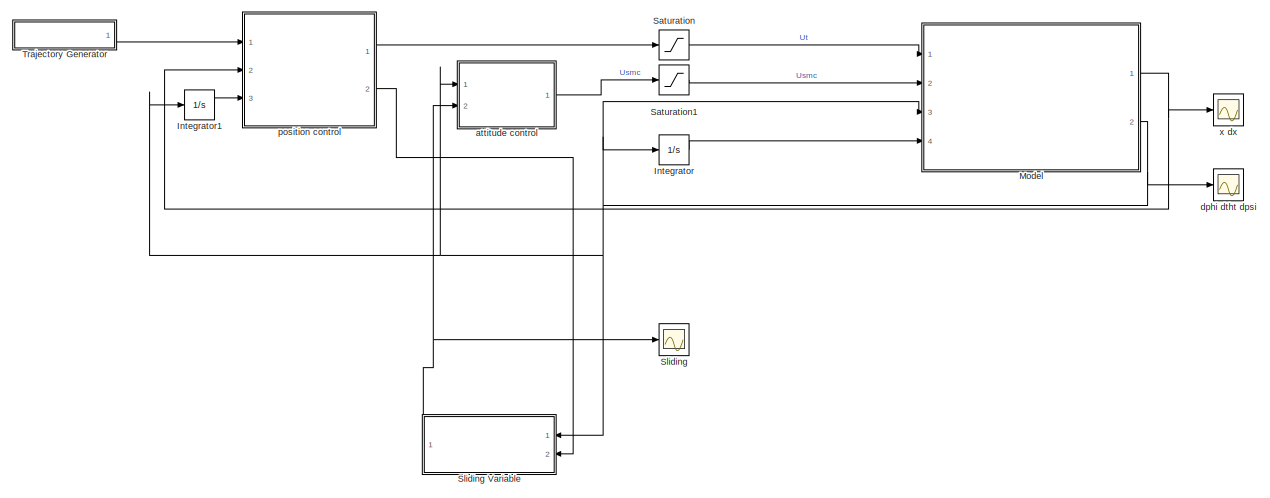
[diagram: root canvas - part 1/2, middle left region]
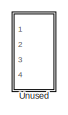
[diagram: root canvas - part 2/2, bottom right region]
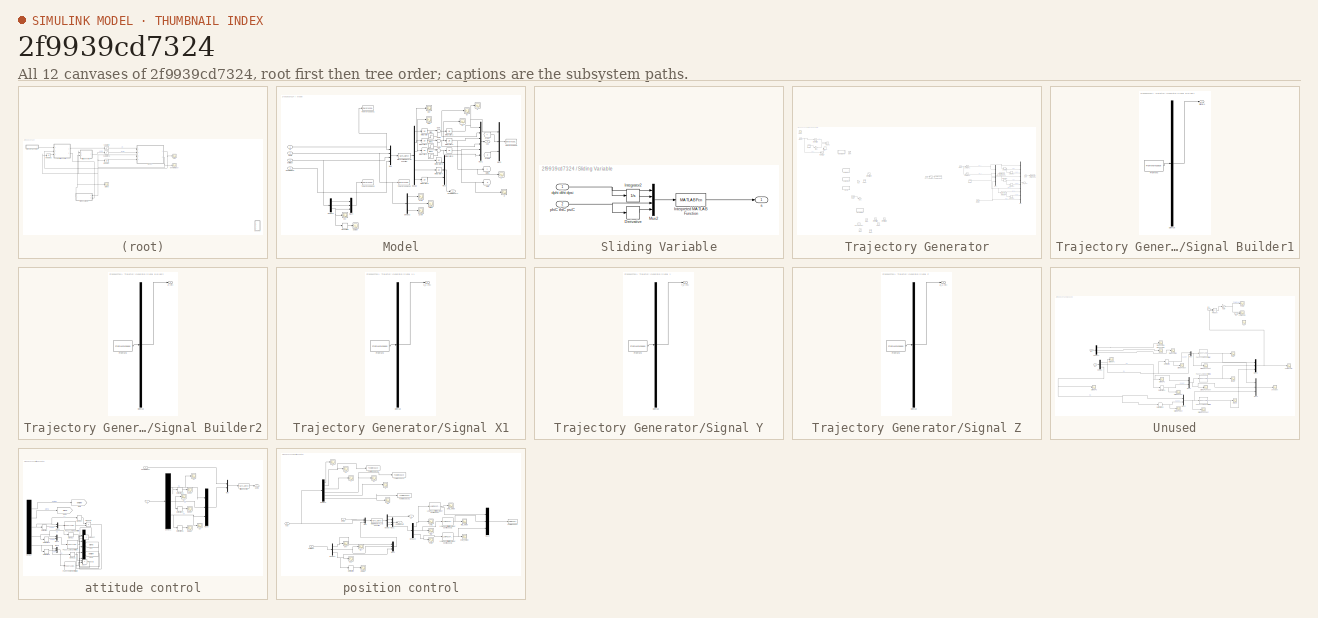
[diagram: thumbnail index - all 12 canvases of the model, root first then tree order]
MODEL slx_2f9939cd7324
KIND model
CONFIG AbsTol = auto
CONFIG EnableMultiTasking = on
CONFIG FixedStep = 0.01
CONFIG MaxStep = auto
CONFIG MinStep = auto
CONFIG RelTol = 1e-3
CONFIG SampleTimeConstraint = Unconstrained
CONFIG SolverName = ode3
CONFIG StartTime = 0.0
CONFIG StopTime = 100
BLOCK [Integrator] Integrator
  Ports = [1, 1]
BLOCK [Integrator] Integrator1
  Ports = [1, 1]
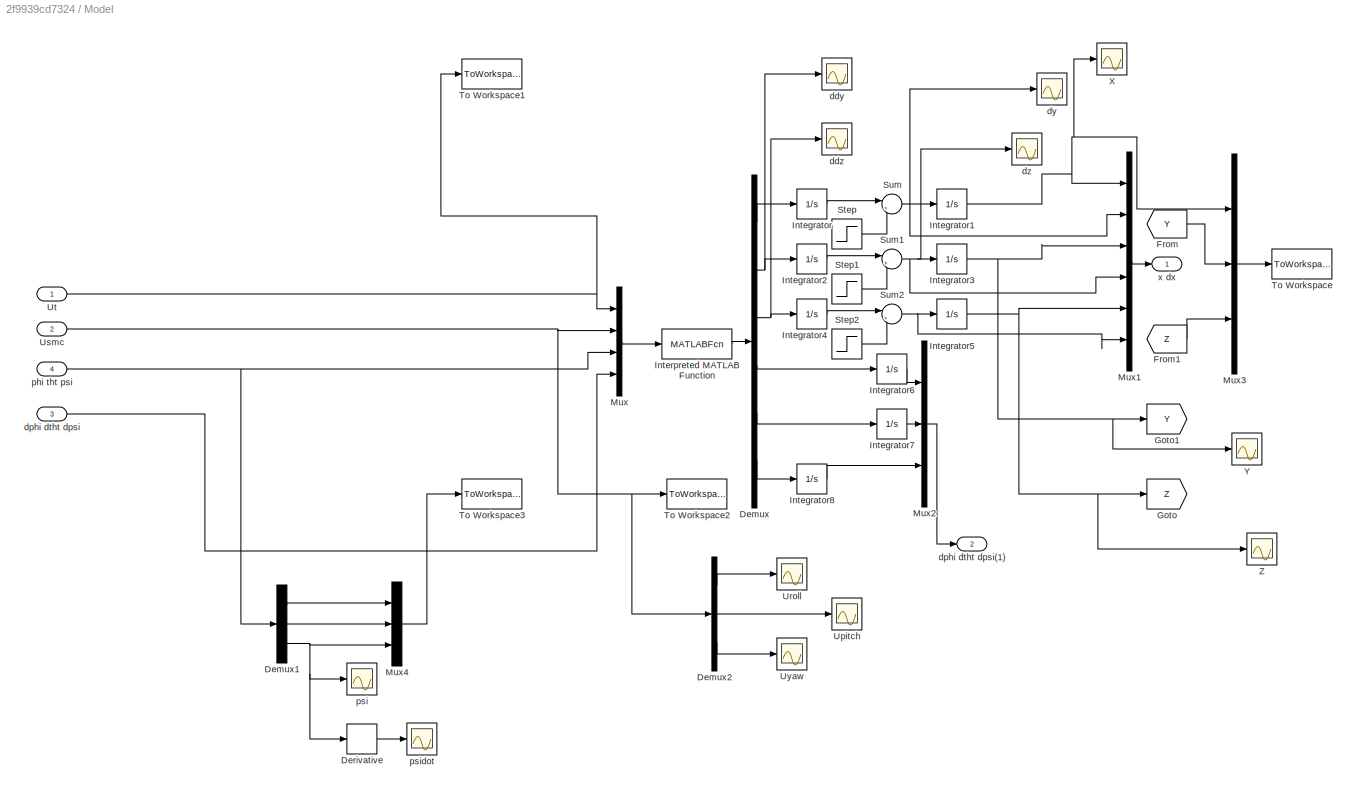
BLOCK [SubSystem] Model
  Ports = [4, 2]
  RequestExecContextInheritance = off
BLOCK [Demux] Model/Demux
  Outputs = 6
  Ports = [1, 6]
BLOCK [Demux] Model/Demux1
  Outputs = 3
  Ports = [1, 3]
BLOCK [Demux] Model/Demux2
  Outputs = 3
  Ports = [1, 3]
BLOCK [Derivative] Model/Derivative
BLOCK [From] Model/From
  GotoTag = Y
BLOCK [From] Model/From1
  GotoTag = Z
BLOCK [Goto] Model/Goto
  GotoTag = Z
BLOCK [Goto] Model/Goto1
  GotoTag = Y
BLOCK [Integrator] Model/Integrator
  Ports = [1, 1]
BLOCK [Integrator] Model/Integrator1
  Ports = [1, 1]
BLOCK [Integrator] Model/Integrator2
  Ports = [1, 1]
BLOCK [Integrator] Model/Integrator3
  InitialCondition = 8
  Ports = [1, 1]
BLOCK [Integrator] Model/Integrator4
  Ports = [1, 1]
BLOCK [Integrator] Model/Integrator5
  Ports = [1, 1]
BLOCK [Integrator] Model/Integrator6
  Ports = [1, 1]
BLOCK [Integrator] Model/Integrator7
  Ports = [1, 1]
BLOCK [Integrator] Model/Integrator8
  Ports = [1, 1]
BLOCK [MATLABFcn] Model/Interpreted MATLAB Function
  MATLABFcn = model(u)
  OutputDimensions = 6
  Ports = [1, 1]
BLOCK [Mux] Model/Mux
  DisplayOption = bar
  Ports = [4, 1]
BLOCK [Mux] Model/Mux1
  DisplayOption = bar
  Inputs = 6
  Ports = [6, 1]
BLOCK [Mux] Model/Mux2
  DisplayOption = bar
  Inputs = 3
  Ports = [3, 1]
BLOCK [Mux] Model/Mux3
  DisplayOption = bar
  Inputs = 3
  Ports = [3, 1]
BLOCK [Mux] Model/Mux4
  DisplayOption = bar
  Inputs = 3
  Ports = [3, 1]
BLOCK [Step] Model/Step
  After = 5
  SampleTime = 0
  Time = 25
BLOCK [Step] Model/Step1
  After = 5
  SampleTime = 0
  Time = 25
BLOCK [Step] Model/Step2
  After = 5
  SampleTime = 0
  Time = 25
BLOCK [Sum] Model/Sum
  Inputs = |++
  Ports = [2, 1]
BLOCK [Sum] Model/Sum1
  Inputs = |++
  Ports = [2, 1]
BLOCK [Sum] Model/Sum2
  Inputs = |++
  Ports = [2, 1]
BLOCK [ToWorkspace] Model/To Workspace
  FixptAsFi = on
  MaxDataPoints = inf
  Ports = [1]
  SampleTime = -1
  VariableName = xyz
BLOCK [ToWorkspace] Model/To Workspace1
  FixptAsFi = on
  MaxDataPoints = inf
  Ports = [1]
  SampleTime = -1
  VariableName = u1
BLOCK [ToWorkspace] Model/To Workspace2
  FixptAsFi = on
  MaxDataPoints = inf
  Ports = [1]
  SampleTime = -1
  VariableName = u2
BLOCK [ToWorkspace] Model/To Workspace3
  FixptAsFi = on
  MaxDataPoints = inf
  Ports = [1]
  SampleTime = -1
  VariableName = phi_tht_psi
BLOCK [Scope] Model/Upitch
  Floating = off
  NumInputPorts = 1
  Ports = [1]
  ScopeSpecificationString = Simulink.scopes.TimeScopeBlockCfg('CurrentConfiguration', extmgr.ConfigurationSet(extmgr.Configuration('Core','General UI',true),extmgr.Configuration('Core','Source UI',true),extmgr.Configuration('Sources','WiredSimulink',true,'DataLoggingVariableName','ScopeData2'),extmgr.Configuration('Visuals','Time Domain',true,'SerializedDisplays',{struct('MinYLimReal','-0.02536','MaxYLimReal','0.02729','YLab...<+1407ch>
BLOCK [Scope] Model/Uroll
  Floating = off
  NumInputPorts = 1
  Ports = [1]
  ScopeSpecificationString = Simulink.scopes.TimeScopeBlockCfg('CurrentConfiguration', extmgr.ConfigurationSet(extmgr.Configuration('Core','General UI',true),extmgr.Configuration('Core','Source UI',true),extmgr.Configuration('Sources','WiredSimulink',true,'DataLoggingVariableName','ScopeData1'),extmgr.Configuration('Visuals','Time Domain',true,'SerializedDisplays',{struct('MinYLimReal','-0.02821','MaxYLimReal','0.02435','YLab...<+1407ch>
BLOCK [Inport] Model/Usmc
  Port = 2
BLOCK [Inport] Model/Ut
BLOCK [Scope] Model/Uyaw
  Floating = off
  NumInputPorts = 1
  Ports = [1]
  ScopeSpecificationString = Simulink.scopes.TimeScopeBlockCfg('CurrentConfiguration', extmgr.ConfigurationSet(extmgr.Configuration('Core','General UI',true),extmgr.Configuration('Core','Source UI',true),extmgr.Configuration('Sources','WiredSimulink',true,'DataLoggingVariableName','ScopeData3'),extmgr.Configuration('Visuals','Time Domain',true,'SerializedDisplays',{struct('MinYLimReal','-0.04535','MaxYLimReal','0.05338','YLab...<+1407ch>
BLOCK [Scope] Model/X
  Floating = off
  NumInputPorts = 1
  Ports = [1]
  ScopeSpecificationString = Simulink.scopes.TimeScopeBlockCfg('CurrentConfiguration', extmgr.ConfigurationSet(extmgr.Configuration('Core','General UI',true),extmgr.Configuration('Core','Source UI',true),extmgr.Configuration('Sources','WiredSimulink',true,'DataLoggingVariableName','ScopeData1'),extmgr.Configuration('Visuals','Time Domain',true,'SerializedDisplays',{struct('MinYLimReal','-0.99936','MaxYLimReal','8.99421','YLab...<+1370ch>
BLOCK [Scope] Model/Y
  Floating = off
  NumInputPorts = 1
  Ports = [1]
  ScopeSpecificationString = Simulink.scopes.TimeScopeBlockCfg('CurrentConfiguration', extmgr.ConfigurationSet(extmgr.Configuration('Core','General UI',true),extmgr.Configuration('Core','Source UI',true),extmgr.Configuration('Sources','WiredSimulink',true,'DataLoggingVariableName','ScopeData2'),extmgr.Configuration('Visuals','Time Domain',true,'SerializedDisplays',{struct('MinYLimReal','-9.19845','MaxYLimReal','9.91094','YLab...<+1370ch>
BLOCK [Scope] Model/Z
  Floating = off
  NumInputPorts = 1
  Ports = [1]
  ScopeSpecificationString = Simulink.scopes.TimeScopeBlockCfg('CurrentConfiguration', extmgr.ConfigurationSet(extmgr.Configuration('Core','General UI',true),extmgr.Configuration('Core','Source UI',true),extmgr.Configuration('Sources','WiredSimulink',true,'DataLoggingVariableName','ScopeData3'),extmgr.Configuration('Visuals','Time Domain',true),extmgr.Configuration('Tools','Plot Navigation',true),extmgr.Configuration('Tools',...<+40ch>
BLOCK [Scope] Model/ddy
  Floating = off
  NumInputPorts = 1
  Ports = [1]
  ScopeSpecificationString = Simulink.scopes.TimeScopeBlockCfg('CurrentConfiguration', extmgr.ConfigurationSet(extmgr.Configuration('Core','General UI',true),extmgr.Configuration('Core','Source UI',true),extmgr.Configuration('Sources','WiredSimulink',true,'DataLoggingVariableName','ScopeData4'),extmgr.Configuration('Visuals','Time Domain',true,'SerializedDisplays',{struct('MinYLimReal','-13.37923','MaxYLimReal','8.30279','YLa...<+1370ch>
BLOCK [Scope] Model/ddz
  Floating = off
  NumInputPorts = 1
  Ports = [1]
  ScopeSpecificationString = Simulink.scopes.TimeScopeBlockCfg('CurrentConfiguration', extmgr.ConfigurationSet(extmgr.Configuration('Core','General UI',true),extmgr.Configuration('Core','Source UI',true),extmgr.Configuration('Sources','WiredSimulink',true,'DataLoggingVariableName','ScopeData5'),extmgr.Configuration('Visuals','Time Domain',true,'SerializedDisplays',{struct('MinYLimReal','-10.07515','MaxYLimReal','10.73277','YL...<+1372ch>
BLOCK [Inport] Model/dphi dtht dpsi
  Port = 3
BLOCK [Outport] Model/dphi dtht dpsi(1)
  Port = 2
BLOCK [Scope] Model/dy
  Floating = off
  NumInputPorts = 1
  Ports = [1]
  ScopeSpecificationString = Simulink.scopes.TimeScopeBlockCfg('CurrentConfiguration', extmgr.ConfigurationSet(extmgr.Configuration('Core','General UI',true),extmgr.Configuration('Core','Source UI',true),extmgr.Configuration('Sources','WiredSimulink',true,'DataLoggingVariableName','ScopeData6'),extmgr.Configuration('Visuals','Time Domain',true,'SerializedDisplays',{struct('MinYLimReal','-13.44228','MaxYLimReal','8.87017','YLa...<+1370ch>
BLOCK [Scope] Model/dz
  Floating = off
  NumInputPorts = 1
  Ports = [1]
  ScopeSpecificationString = Simulink.scopes.TimeScopeBlockCfg('CurrentConfiguration', extmgr.ConfigurationSet(extmgr.Configuration('Core','General UI',true),extmgr.Configuration('Core','Source UI',true),extmgr.Configuration('Sources','WiredSimulink',true,'DataLoggingVariableName','ScopeData7'),extmgr.Configuration('Visuals','Time Domain',true,'SerializedDisplays',{struct('MinYLimReal','-2.14368','MaxYLimReal','5.28824','YLab...<+1418ch>
BLOCK [Inport] Model/phi tht psi
  Port = 4
BLOCK [Scope] Model/psi
  Floating = off
  NumInputPorts = 1
  Ports = [1]
  ScopeSpecificationString = Simulink.scopes.TimeScopeBlockCfg('CurrentConfiguration', extmgr.ConfigurationSet(extmgr.Configuration('Core','General UI',true),extmgr.Configuration('Core','Source UI',true),extmgr.Configuration('Sources','WiredSimulink',true,'DataLoggingVariableName','ScopeData7'),extmgr.Configuration('Visuals','Time Domain',true,'SerializedDisplays',{struct('MinYLimReal','-0.00177','MaxYLimReal','0.00158','YLab...<+1426ch>
BLOCK [Scope] Model/psidot
  Floating = off
  NumInputPorts = 1
  Ports = [1]
  ScopeSpecificationString = Simulink.scopes.TimeScopeBlockCfg('CurrentConfiguration', extmgr.ConfigurationSet(extmgr.Configuration('Core','General UI',true),extmgr.Configuration('Core','Source UI',true),extmgr.Configuration('Sources','WiredSimulink',true,'DataLoggingVariableName','ScopeData8'),extmgr.Configuration('Visuals','Time Domain',true,'SerializedDisplays',{struct('MinYLimReal','-0.59838','MaxYLimReal','0.47389','YLab...<+1409ch>
BLOCK [Outport] Model/x dx
BLOCK [Saturate] Saturation
  LowerLimit = 0
  NameLocation = top
  UpperLimit = 2*m*g
BLOCK [Saturate] Saturation1
  LowerLimit = -0.2
  UpperLimit = 0.2
BLOCK [Scope] Sliding
  Floating = off
  NumInputPorts = 1
  Ports = [1]
  ScopeSpecificationString = Simulink.scopes.TimeScopeBlockCfg('CurrentConfiguration', extmgr.ConfigurationSet(extmgr.Configuration('Core','General UI',true),extmgr.Configuration('Core','Source UI',true),extmgr.Configuration('Sources','WiredSimulink',true,'DataLoggingVariableName','ScopeData2'),extmgr.Configuration('Visuals','Time Domain',true,'SerializedDisplays',{struct('MinYLimReal','-1740.33859','MaxYLimReal','193.37095',...<+1445ch>
BLOCK [SubSystem] Sliding Variable
  Ports = [2, 1]
  RequestExecContextInheritance = off
BLOCK [Derivative] Sliding Variable/Derivative
BLOCK [Integrator] Sliding Variable/Integrator2
  NameLocation = top
  Ports = [1, 1]
BLOCK [MATLABFcn] Sliding Variable/Interpreted MATLAB Function
  MATLABFcn = sliding_var(u)
  OutputDimensions = 3
  Ports = [1, 1]
BLOCK [Mux] Sliding Variable/Mux2
  DisplayOption = bar
  Ports = [4, 1]
BLOCK [Inport] Sliding Variable/dphi dtht dpsi
BLOCK [Inport] Sliding Variable/phiC thtC psiC
  Port = 2
BLOCK [Outport] Sliding Variable/s
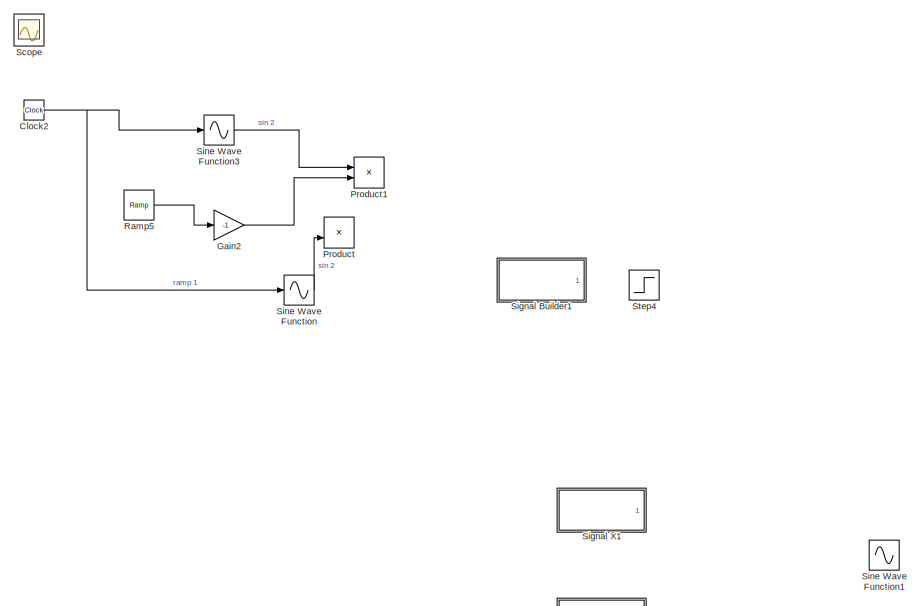
[diagram: Trajectory Generator - part 1/3, top left region]
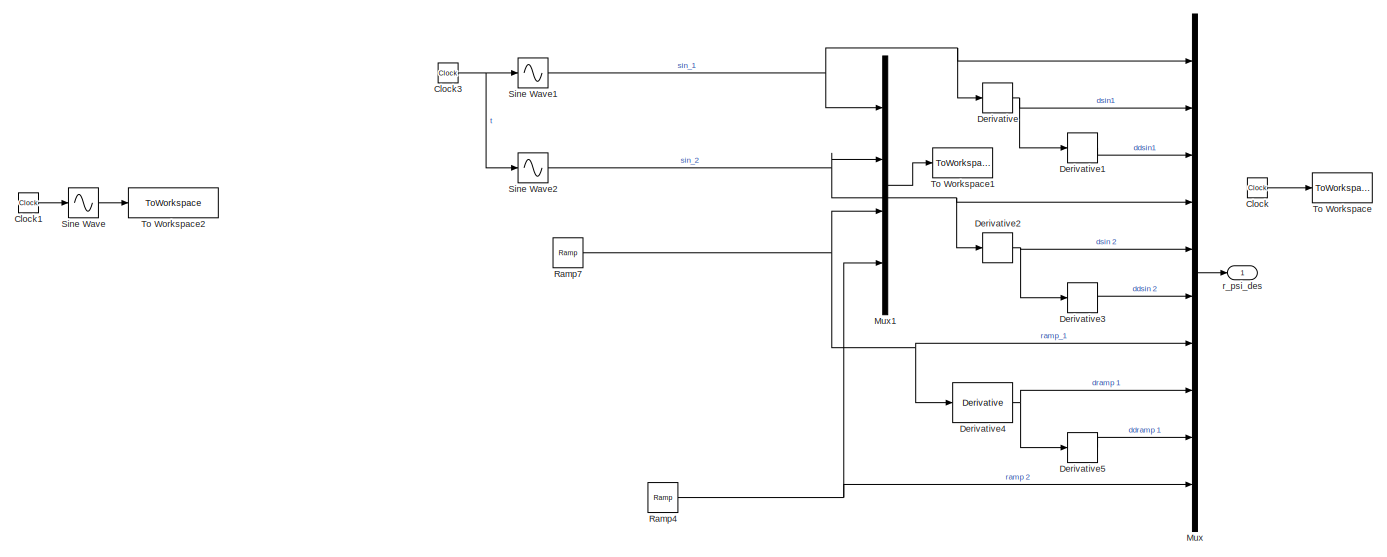
[diagram: Trajectory Generator - part 2/3, middle right region]
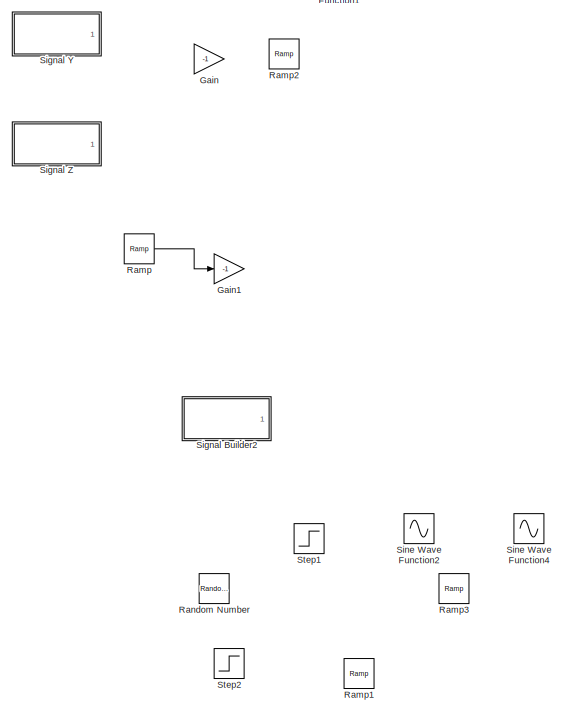
[diagram: Trajectory Generator - part 3/3, bottom left region]
BLOCK [SubSystem] Trajectory Generator
  Ports = [0, 1]
  RequestExecContextInheritance = off
BLOCK [Clock] Trajectory Generator/Clock
BLOCK [Clock] Trajectory Generator/Clock1
  Commented = on
BLOCK [Clock] Trajectory Generator/Clock2
  Commented = on
BLOCK [Clock] Trajectory Generator/Clock3
BLOCK [Derivative] Trajectory Generator/Derivative
BLOCK [Derivative] Trajectory Generator/Derivative1
BLOCK [Derivative] Trajectory Generator/Derivative2
BLOCK [Derivative] Trajectory Generator/Derivative3
BLOCK [Derivative] Trajectory Generator/Derivative4
BLOCK [Derivative] Trajectory Generator/Derivative5
BLOCK [Gain] Trajectory Generator/Gain
  Commented = on
  Gain = -1
BLOCK [Gain] Trajectory Generator/Gain1
  Commented = on
  Gain = -1
BLOCK [Gain] Trajectory Generator/Gain2
  Commented = on
  Gain = -1
BLOCK [Mux] Trajectory Generator/Mux
  DisplayOption = bar
  Inputs = 10
  Ports = [10, 1]
BLOCK [Mux] Trajectory Generator/Mux1
  DisplayOption = bar
  Ports = [4, 1]
BLOCK [Product] Trajectory Generator/Product
  Commented = on
  Ports = [2, 1]
BLOCK [Product] Trajectory Generator/Product1
  Commented = on
  Ports = [2, 1]
BLOCK [Reference] Trajectory Generator/Ramp  REF=simulink/Sources/Ramp
  Commented = on
  Ports = [0, 1]
  SourceBlock = simulink/Sources/Ramp
  SourceProductBaseCode = SL
  SourceType = Ramp
BLOCK [Reference] Trajectory Generator/Ramp1  REF=simulink/Sources/Ramp
  Commented = on
  Ports = [0, 1]
  SourceBlock = simulink/Sources/Ramp
  SourceProductBaseCode = SL
  SourceType = Ramp
BLOCK [Reference] Trajectory Generator/Ramp2  REF=simulink/Sources/Ramp
  Commented = on
  Ports = [0, 1]
  SourceBlock = simulink/Sources/Ramp
  SourceProductBaseCode = SL
  SourceType = Ramp
BLOCK [Reference] Trajectory Generator/Ramp3  REF=simulink/Sources/Ramp
  Commented = on
  Ports = [0, 1]
  SourceBlock = simulink/Sources/Ramp
  SourceProductBaseCode = SL
  SourceType = Ramp
BLOCK [Reference] Trajectory Generator/Ramp4  REF=simulink/Sources/Ramp
  Ports = [0, 1]
  SourceBlock = simulink/Sources/Ramp
  SourceProductBaseCode = SL
  SourceType = Ramp
BLOCK [Reference] Trajectory Generator/Ramp5  REF=simulink/Sources/Ramp
  Commented = on
  Ports = [0, 1]
  SourceBlock = simulink/Sources/Ramp
  SourceProductBaseCode = SL
  SourceType = Ramp
BLOCK [Reference] Trajectory Generator/Ramp7  REF=simulink/Sources/Ramp
  Ports = [0, 1]
  SourceBlock = simulink/Sources/Ramp
  SourceProductBaseCode = SL
  SourceType = Ramp
BLOCK [RandomNumber] Trajectory Generator/Random Number
  Commented = on
  SampleTime = 0
BLOCK [Scope] Trajectory Generator/Scope
  Commented = on
  Floating = off
  NumInputPorts = 1
  Ports = [1]
  ScopeSpecificationString = Simulink.scopes.TimeScopeBlockCfg('CurrentConfiguration', extmgr.ConfigurationSet(extmgr.Configuration('Core','General UI',true),extmgr.Configuration('Core','Source UI',true),extmgr.Configuration('Sources','WiredSimulink',true,'DataLoggingVariableName','ScopeData1'),extmgr.Configuration('Visuals','Time Domain',true),extmgr.Configuration('Tools','Plot Navigation',true),extmgr.Configuration('Tools',...<+40ch>
BLOCK [SubSystem] Trajectory Generator/Signal Builder1
  ClipboardFcn = sigbuilder_block('clipboard');
  CloseFcn = sigbuilder_block('close');
  Commented = on
  ContinueFcn = sigbuilder_block('continue');
  CopyFcn = sigbuilder_block('copy');
  DeleteFcn = sigbuilder_block('delete');
  LoadFcn = sigbuilder_block('load');
  MaskHideContents = on
  ModelCloseFcn = sigbuilder_block('modelClose');
  NameChangeFcn = sigbuilder_block('namechange');
  OpenFcn = sigbuilder_block('open',[411 128.5 543.5 351.5 ]);
  PauseFcn = sigbuilder_block('pause');
  Ports = [0, 1]
  PreSaveFcn = sigbuilder_block('preSave');
  RequestExecContextInheritance = off
  StartFcn = sigbuilder_block('start');
  StopFcn = sigbuilder_block('stop');
  Tag = STV Subsys
BLOCK [Demux] Trajectory Generator/Signal Builder1/Demux
  DisplayOption = none
  Outputs = 1
  Ports = [1, 1]
  Tag = STV Demux
BLOCK [FromWorkspace] Trajectory Generator/Signal Builder1/FromWs
  Tag = STV FromWs
  VariableName = tuvar
BLOCK [Outport] Trajectory Generator/Signal Builder1/Signal 1
  Tag = STV Outport
BLOCK [SubSystem] Trajectory Generator/Signal Builder2
  ClipboardFcn = sigbuilder_block('clipboard');
  CloseFcn = sigbuilder_block('close');
  Commented = on
  ContinueFcn = sigbuilder_block('continue');
  CopyFcn = sigbuilder_block('copy');
  DeleteFcn = sigbuilder_block('delete');
  LoadFcn = sigbuilder_block('load');
  MaskHideContents = on
  ModelCloseFcn = sigbuilder_block('modelClose');
  NameChangeFcn = sigbuilder_block('namechange');
  OpenFcn = sigbuilder_block('open',[5.5 30 949 418 ]);
  PauseFcn = sigbuilder_block('pause');
  Ports = [0, 1]
  PreSaveFcn = sigbuilder_block('preSave');
  RequestExecContextInheritance = off
  StartFcn = sigbuilder_block('start');
  StopFcn = sigbuilder_block('stop');
  Tag = STV Subsys
BLOCK [Demux] Trajectory Generator/Signal Builder2/Demux
  DisplayOption = none
  Outputs = 1
  Ports = [1, 1]
  Tag = STV Demux
BLOCK [FromWorkspace] Trajectory Generator/Signal Builder2/FromWs
  Tag = STV FromWs
  VariableName = tuvar
BLOCK [Outport] Trajectory Generator/Signal Builder2/Z (m)
  Tag = STV Outport
BLOCK [SubSystem] Trajectory Generator/Signal X1
  ClipboardFcn = sigbuilder_block('clipboard');
  CloseFcn = sigbuilder_block('close');
  Commented = on
  ContinueFcn = sigbuilder_block('continue');
  CopyFcn = sigbuilder_block('copy');
  DeleteFcn = sigbuilder_block('delete');
  LoadFcn = sigbuilder_block('load');
  MaskHideContents = on
  ModelCloseFcn = sigbuilder_block('modelClose');
  NameChangeFcn = sigbuilder_block('namechange');
  OpenFcn = sigbuilder_block('open',[411 128.5 543.5 351.5 ]);
  PauseFcn = sigbuilder_block('pause');
  Ports = [0, 1]
  PreSaveFcn = sigbuilder_block('preSave');
  RequestExecContextInheritance = off
  StartFcn = sigbuilder_block('start');
  StopFcn = sigbuilder_block('stop');
  Tag = STV Subsys
BLOCK [Demux] Trajectory Generator/Signal X1/Demux
  DisplayOption = none
  Outputs = 1
  Ports = [1, 1]
  Tag = STV Demux
BLOCK [FromWorkspace] Trajectory Generator/Signal X1/FromWs
  Tag = STV FromWs
  VariableName = tuvar
BLOCK [Outport] Trajectory Generator/Signal X1/X_1 (m)
  Tag = STV Outport
BLOCK [SubSystem] Trajectory Generator/Signal Y
  ClipboardFcn = sigbuilder_block('clipboard');
  CloseFcn = sigbuilder_block('close');
  Commented = on
  ContinueFcn = sigbuilder_block('continue');
  CopyFcn = sigbuilder_block('copy');
  DeleteFcn = sigbuilder_block('delete');
  LoadFcn = sigbuilder_block('load');
  MaskHideContents = on
  ModelCloseFcn = sigbuilder_block('modelClose');
  NameChangeFcn = sigbuilder_block('namechange');
  OpenFcn = sigbuilder_block('open',[411 128.5 543.5 351.5 ]);
  PauseFcn = sigbuilder_block('pause');
  Ports = [0, 1]
  PreSaveFcn = sigbuilder_block('preSave');
  RequestExecContextInheritance = off
  StartFcn = sigbuilder_block('start');
  StopFcn = sigbuilder_block('stop');
  Tag = STV Subsys
BLOCK [Demux] Trajectory Generator/Signal Y/Demux
  DisplayOption = none
  Outputs = 1
  Ports = [1, 1]
  Tag = STV Demux
BLOCK [FromWorkspace] Trajectory Generator/Signal Y/FromWs
  Tag = STV FromWs
  VariableName = tuvar
BLOCK [Outport] Trajectory Generator/Signal Y/Y_2 (m)
  Tag = STV Outport
BLOCK [SubSystem] Trajectory Generator/Signal Z
  ClipboardFcn = sigbuilder_block('clipboard');
  CloseFcn = sigbuilder_block('close');
  Commented = on
  ContinueFcn = sigbuilder_block('continue');
  CopyFcn = sigbuilder_block('copy');
  DeleteFcn = sigbuilder_block('delete');
  LoadFcn = sigbuilder_block('load');
  MaskHideContents = on
  ModelCloseFcn = sigbuilder_block('modelClose');
  NameChangeFcn = sigbuilder_block('namechange');
  OpenFcn = sigbuilder_block('open',[411 128.5 543.5 351.5 ]);
  PauseFcn = sigbuilder_block('pause');
  Ports = [0, 1]
  PreSaveFcn = sigbuilder_block('preSave');
  RequestExecContextInheritance = off
  StartFcn = sigbuilder_block('start');
  StopFcn = sigbuilder_block('stop');
  Tag = STV Subsys
BLOCK [Demux] Trajectory Generator/Signal Z/Demux
  DisplayOption = none
  Outputs = 1
  Ports = [1, 1]
  Tag = STV Demux
BLOCK [FromWorkspace] Trajectory Generator/Signal Z/FromWs
  Tag = STV FromWs
  VariableName = tuvar
BLOCK [Outport] Trajectory Generator/Signal Z/Z_1 (m)
  Tag = STV Outport
BLOCK [Sin] Trajectory Generator/Sine Wave
  Amplitude = 0.4
  Commented = on
  Ports = [1, 1]
  SampleTime = 0
  TimeSource = Use external signal
BLOCK [Sin] Trajectory Generator/Sine Wave Function
  Amplitude = 10
  Commented = on
  Frequency = 0.1
  Phase = pi/2
  Ports = [1, 1]
  SampleTime = 0
  TimeSource = Use external signal
BLOCK [Sin] Trajectory Generator/Sine Wave Function1
  Amplitude = 8
  Commented = on
  Frequency = 0.1
  Phase = pi/2
  Ports = [1, 1]
  SampleTime = 0
  TimeSource = Use external signal
BLOCK [Sin] Trajectory Generator/Sine Wave Function2
  Amplitude = 10
  Commented = on
  Frequency = 0.1
  Ports = [1, 1]
  SampleTime = 0
  TimeSource = Use external signal
BLOCK [Sin] Trajectory Generator/Sine Wave Function3
  Amplitude = 10
  Commented = on
  Frequency = 0.1
  Ports = [1, 1]
  SampleTime = 0
  TimeSource = Use external signal
BLOCK [Sin] Trajectory Generator/Sine Wave Function4
  Amplitude = 10
  Commented = on
  Frequency = 0.1
  Phase = pi/2
  Ports = [1, 1]
  SampleTime = 0
  TimeSource = Use external signal
BLOCK [Sin] Trajectory Generator/Sine Wave1
  Amplitude = 8
  Frequency = 0.1
  Ports = [1, 1]
  SampleTime = 0
  TimeSource = Use external signal
BLOCK [Sin] Trajectory Generator/Sine Wave2
  Amplitude = 8
  Frequency = 0.1
  Phase = pi/2
  Ports = [1, 1]
  SampleTime = 0
  TimeSource = Use external signal
BLOCK [Step] Trajectory Generator/Step1
  Before = -8
  Commented = on
  SampleTime = 0
BLOCK [Step] Trajectory Generator/Step2
  Commented = on
  SampleTime = 0
BLOCK [Step] Trajectory Generator/Step4
  After = 8
  Commented = on
  SampleTime = 0
BLOCK [ToWorkspace] Trajectory Generator/To Workspace
  FixptAsFi = on
  MaxDataPoints = inf
  Ports = [1]
  SampleTime = -1
  VariableName = t
BLOCK [ToWorkspace] Trajectory Generator/To Workspace1
  FixptAsFi = on
  MaxDataPoints = inf
  Ports = [1]
  SampleTime = -1
  VariableName = ref
BLOCK [ToWorkspace] Trajectory Generator/To Workspace2
  Commented = on
  FixptAsFi = on
  MaxDataPoints = inf
  Ports = [1]
  SampleTime = -1
  SaveFormat = Timeseries
  VariableName = vel_platform
BLOCK [Outport] Trajectory Generator/r_psi_des
BLOCK [SubSystem] Unused
  Commented = on
  Ports = [4]
  RequestExecContextInheritance = off
BLOCK [Demux] Unused/Demux
  Commented = on
  Outputs = 3
  Ports = [1, 3]
BLOCK [Demux] Unused/Demux1
  Commented = on
  Outputs = 3
  Ports = [1, 3]
BLOCK [Derivative] Unused/Derivative
  Commented = on
BLOCK [Derivative] Unused/Derivative1
  Commented = on
BLOCK [Derivative] Unused/Derivative2
  Commented = on
BLOCK [Scope] Unused/Diagonal D1
  Commented = on
  Floating = off
  NumInputPorts = 1
  Ports = [1]
  ScopeSpecificationString = Simulink.scopes.TimeScopeBlockCfg('CurrentConfiguration', extmgr.ConfigurationSet(extmgr.Configuration('Core','General UI',true),extmgr.Configuration('Core','Source UI',true),extmgr.Configuration('Sources','WiredSimulink',true,'DataLoggingVariableName','ScopeData6'),extmgr.Configuration('Visuals','Time Domain',true,'SerializedDisplays',{struct('MinYLimReal','-0.00925','MaxYLimReal','0.08321','YLab...<+1367ch>
BLOCK [Scope] Unused/Diagonal D2
  Commented = on
  Floating = off
  NumInputPorts = 1
  Ports = [1]
  ScopeSpecificationString = Simulink.scopes.TimeScopeBlockCfg('CurrentConfiguration', extmgr.ConfigurationSet(extmgr.Configuration('Core','General UI',true),extmgr.Configuration('Core','Source UI',true),extmgr.Configuration('Sources','WiredSimulink',true,'DataLoggingVariableName','ScopeData7'),extmgr.Configuration('Visuals','Time Domain',true,'SerializedDisplays',{struct('MinYLimReal','-1.00000','MaxYLimReal','1.00000','YLab...<+1367ch>
BLOCK [Scope] Unused/Diagonal D3
  Commented = on
  Floating = off
  NumInputPorts = 1
  Ports = [1]
  ScopeSpecificationString = Simulink.scopes.TimeScopeBlockCfg('CurrentConfiguration', extmgr.ConfigurationSet(extmgr.Configuration('Core','General UI',true),extmgr.Configuration('Core','Source UI',true),extmgr.Configuration('Sources','WiredSimulink',true,'DataLoggingVariableName','ScopeData8'),extmgr.Configuration('Visuals','Time Domain',true,'SerializedDisplays',{struct('MinYLimReal','-0.00713','MaxYLimReal','0.06413','YLab...<+1367ch>
BLOCK [Scope] Unused/FSMC
  Commented = on
  Floating = off
  NumInputPorts = 1
  Ports = [1]
  ScopeSpecificationString = Simulink.scopes.TimeScopeBlockCfg('CurrentConfiguration', extmgr.ConfigurationSet(extmgr.Configuration('Core','General UI',true),extmgr.Configuration('Core','Source UI',true),extmgr.Configuration('Sources','WiredSimulink',true,'DataLoggingVariableName','ScopeData2'),extmgr.Configuration('Visuals','Time Domain',true,'SerializedDisplays',{struct('MinYLimReal','-0.63204','MaxYLimReal','0.53851','YLab...<+1457ch>
BLOCK [Scope] Unused/FSMC Total
  Commented = on
  Floating = off
  NumInputPorts = 1
  Ports = [1]
  ScopeSpecificationString = Simulink.scopes.TimeScopeBlockCfg('CurrentConfiguration', extmgr.ConfigurationSet(extmgr.Configuration('Core','General UI',true),extmgr.Configuration('Core','Source UI',true),extmgr.Configuration('Sources','WiredSimulink',true,'DataLoggingVariableName','ScopeData1'),extmgr.Configuration('Visuals','Time Domain',true,'SerializedDisplays',{struct('MinYLimReal','-5.00000','MaxYLimReal','5.00000','YLab...<+1476ch>
BLOCK [Scope] Unused/FSMC x U2
  Commented = on
  Floating = off
  NumInputPorts = 2
  Ports = [2]
  ScopeSpecificationString = Simulink.scopes.TimeScopeBlockCfg('CurrentConfiguration', extmgr.ConfigurationSet(extmgr.Configuration('Core','General UI',true),extmgr.Configuration('Core','Source UI',true),extmgr.Configuration('Sources','WiredSimulink',true,'DataLoggingVariableName','ScopeData1'),extmgr.Configuration('Visuals','Time Domain',true,'SerializedDisplays',{struct('MinYLimReal','-10.00000','MaxYLimReal','10.00000','YL...<+1513ch>
BLOCK [Reference] Unused/Fuzzy Logic Controller  REF=fuzblock/Fuzzy Logic   (lib defined in mdl_858b3b3e7478)
Controller
  Commented = on
  Ports = [1, 1]
  SourceBlock = fuzblock/Fuzzy Logic \nController
  SourceProductBaseCode = FL
  SourceType = Fuzzy Inference System
BLOCK [Reference] Unused/Fuzzy Logic Controller1  REF=fuzblock/Fuzzy Logic   (lib defined in mdl_858b3b3e7478)
Controller
  Commented = on
  Ports = [1, 1]
  SourceBlock = fuzblock/Fuzzy Logic \nController
  SourceProductBaseCode = FL
  SourceType = Fuzzy Inference System
BLOCK [Reference] Unused/Fuzzy Logic Controller2  REF=fuzblock/Fuzzy Logic   (lib defined in mdl_858b3b3e7478)
Controller
  Commented = on
  Ports = [1, 1]
  SourceBlock = fuzblock/Fuzzy Logic \nController
  SourceProductBaseCode = FL
  SourceType = Fuzzy Inference System
BLOCK [Gain] Unused/Gain
  Commented = on
  Gain = 0.5
BLOCK [Inport] Unused/In1
BLOCK [Inport] Unused/In2
  Port = 2
BLOCK [Inport] Unused/In3
  Port = 3
BLOCK [Inport] Unused/In4
  Port = 4
BLOCK [Mux] Unused/Mux
  Commented = on
  DisplayOption = bar
  Inputs = 2
  Ports = [2, 1]
BLOCK [Mux] Unused/Mux1
  Commented = on
  DisplayOption = bar
  Inputs = 2
  Ports = [2, 1]
BLOCK [Mux] Unused/Mux2
  Commented = on
  DisplayOption = bar
  Inputs = 2
  Ports = [2, 1]
BLOCK [Mux] Unused/Mux3
  Commented = on
  DisplayOption = bar
  Inputs = 3
  Ports = [3, 1]
BLOCK [Mux] Unused/Mux4
  Commented = on
  DisplayOption = bar
  Inputs = 3
  Ports = [3, 1]
BLOCK [Product] Unused/Product
  Commented = on
  Ports = [2, 1]
BLOCK [Scope] Unused/S vs Sdot
  Commented = on
  Floating = off
  NumInputPorts = 1
  Ports = [1]
  ScopeSpecificationString = Simulink.scopes.TimeScopeBlockCfg('CurrentConfiguration', extmgr.ConfigurationSet(extmgr.Configuration('Core','General UI',true),extmgr.Configuration('Core','Source UI',true),extmgr.Configuration('Sources','WiredSimulink',true,'DataLoggingVariableName','ScopeData7'),extmgr.Configuration('Visuals','Time Domain',true,'SerializedDisplays',{struct('MinYLimReal','-4329.59339','MaxYLimReal','2455.42017'...<+1476ch>
BLOCK [Scope] Unused/Sliding P1
  Commented = on
  Floating = off
  NumInputPorts = 1
  Ports = [1]
  ScopeSpecificationString = Simulink.scopes.TimeScopeBlockCfg('CurrentConfiguration', extmgr.ConfigurationSet(extmgr.Configuration('Core','General UI',true),extmgr.Configuration('Core','Source UI',true),extmgr.Configuration('Sources','WiredSimulink',true,'DataLoggingVariableName','ScopeData3'),extmgr.Configuration('Visuals','Time Domain',true,'SerializedDisplays',{struct('MinYLimReal','-28.42401','MaxYLimReal','36.37178','YL...<+1426ch>
BLOCK [Scope] Unused/Sliding P1 dot
  Commented = on
  Floating = off
  NumInputPorts = 1
  Ports = [1]
  ScopeSpecificationString = Simulink.scopes.TimeScopeBlockCfg('CurrentConfiguration', extmgr.ConfigurationSet(extmgr.Configuration('Core','General UI',true),extmgr.Configuration('Core','Source UI',true),extmgr.Configuration('Sources','WiredSimulink',true,'DataLoggingVariableName','ScopeData1'),extmgr.Configuration('Visuals','Time Domain',true,'SerializedDisplays',{struct('MinYLimReal','-3263.97784','MaxYLimReal','3618.90081'...<+1445ch>
BLOCK [Scope] Unused/Sliding P1 vs dot
  Commented = on
  Floating = off
  NumInputPorts = 1
  Ports = [1]
  ScopeSpecificationString = Simulink.scopes.TimeScopeBlockCfg('CurrentConfiguration', extmgr.ConfigurationSet(extmgr.Configuration('Core','General UI',true),extmgr.Configuration('Core','Source UI',true),extmgr.Configuration('Sources','WiredSimulink',true,'DataLoggingVariableName','ScopeData4'),extmgr.Configuration('Visuals','Time Domain',true,'SerializedDisplays',{struct('MinYLimReal','-951.34421','MaxYLimReal','446.99576','...<+1423ch>
BLOCK [Scope] Unused/Sliding P2
  Commented = on
  Floating = off
  NumInputPorts = 1
  Ports = [1]
  ScopeSpecificationString = Simulink.scopes.TimeScopeBlockCfg('CurrentConfiguration', extmgr.ConfigurationSet(extmgr.Configuration('Core','General UI',true),extmgr.Configuration('Core','Source UI',true),extmgr.Configuration('Sources','WiredSimulink',true,'DataLoggingVariableName','ScopeData4'),extmgr.Configuration('Visuals','Time Domain',true,'SerializedDisplays',{struct('MinYLimReal','-91.0264','MaxYLimReal','51.62738','YLa...<+1422ch>
BLOCK [Scope] Unused/Sliding P2 dot
  Commented = on
  Floating = off
  NumInputPorts = 1
  Ports = [1]
  ScopeSpecificationString = Simulink.scopes.TimeScopeBlockCfg('CurrentConfiguration', extmgr.ConfigurationSet(extmgr.Configuration('Core','General UI',true),extmgr.Configuration('Core','Source UI',true),extmgr.Configuration('Sources','WiredSimulink',true,'DataLoggingVariableName','ScopeData2'),extmgr.Configuration('Visuals','Time Domain',true,'SerializedDisplays',{struct('MinYLimReal','-8990.40556','MaxYLimReal','10065.4342'...<+1445ch>
BLOCK [Scope] Unused/Sliding P2 vs dot
  Commented = on
  Floating = off
  NumInputPorts = 1
  Ports = [1]
  ScopeSpecificationString = Simulink.scopes.TimeScopeBlockCfg('CurrentConfiguration', extmgr.ConfigurationSet(extmgr.Configuration('Core','General UI',true),extmgr.Configuration('Core','Source UI',true),extmgr.Configuration('Sources','WiredSimulink',true,'DataLoggingVariableName','ScopeData5'),extmgr.Configuration('Visuals','Time Domain',true,'SerializedDisplays',{struct('MinYLimReal','-32261.38514','MaxYLimReal','19262.3115...<+1410ch>
BLOCK [Scope] Unused/Sliding P3
  Commented = on
  Floating = off
  NumInputPorts = 1
  Ports = [1]
  ScopeSpecificationString = Simulink.scopes.TimeScopeBlockCfg('CurrentConfiguration', extmgr.ConfigurationSet(extmgr.Configuration('Core','General UI',true),extmgr.Configuration('Core','Source UI',true),extmgr.Configuration('Sources','WiredSimulink',true,'DataLoggingVariableName','ScopeData5'),extmgr.Configuration('Visuals','Time Domain',true,'SerializedDisplays',{struct('MinYLimReal','-0.17199','MaxYLimReal','0.29067','YLab...<+1361ch>
BLOCK [Scope] Unused/Sliding P3 dot
  Commented = on
  Floating = off
  NumInputPorts = 1
  Ports = [1]
  ScopeSpecificationString = Simulink.scopes.TimeScopeBlockCfg('CurrentConfiguration', extmgr.ConfigurationSet(extmgr.Configuration('Core','General UI',true),extmgr.Configuration('Core','Source UI',true),extmgr.Configuration('Sources','WiredSimulink',true,'DataLoggingVariableName','ScopeData3'),extmgr.Configuration('Visuals','Time Domain',true,'SerializedDisplays',{struct('MinYLimReal','-0.000000004','MaxYLimReal','0.00000001...<+1396ch>
BLOCK [Scope] Unused/Sliding P3 vs dot
  Commented = on
  Floating = off
  NumInputPorts = 1
  Ports = [1]
  ScopeSpecificationString = Simulink.scopes.TimeScopeBlockCfg('CurrentConfiguration', extmgr.ConfigurationSet(extmgr.Configuration('Core','General UI',true),extmgr.Configuration('Core','Source UI',true),extmgr.Configuration('Sources','WiredSimulink',true,'DataLoggingVariableName','ScopeData6'),extmgr.Configuration('Visuals','Time Domain',true,'SerializedDisplays',{struct('MinYLimReal','-0.000000004','MaxYLimReal','0.00000001...<+1401ch>
BLOCK [Scope] Unused/U2
  Commented = on
  Floating = off
  NumInputPorts = 1
  Ports = [1]
  ScopeSpecificationString = Simulink.scopes.TimeScopeBlockCfg('CurrentConfiguration', extmgr.ConfigurationSet(extmgr.Configuration('Core','General UI',true),extmgr.Configuration('Core','Source UI',true),extmgr.Configuration('Sources','WiredSimulink',true,'DataLoggingVariableName','ScopeData1'),extmgr.Configuration('Visuals','Time Domain',true,'SerializedDisplays',{struct('MinYLimReal','-10.00000','MaxYLimReal','10.00000','YL...<+1471ch>
BLOCK [Scope] Unused/fsmc
  Commented = on
  Floating = off
  NumInputPorts = 1
  Ports = [1]
  ScopeSpecificationString = Simulink.scopes.TimeScopeBlockCfg('CurrentConfiguration', extmgr.ConfigurationSet(extmgr.Configuration('Core','General UI',true),extmgr.Configuration('Core','Source UI',true),extmgr.Configuration('Sources','WiredSimulink',true,'DataLoggingVariableName','ScopeData2'),extmgr.Configuration('Visuals','Time Domain',true,'SerializedDisplays',{struct('MinYLimReal','-17.2','MaxYLimReal','27.70737','YLabel...<+1468ch>
BLOCK [Scope] Unused/fsmc1
  Commented = on
  Floating = off
  NumInputPorts = 1
  Ports = [1]
  ScopeSpecificationString = Simulink.scopes.TimeScopeBlockCfg('CurrentConfiguration', extmgr.ConfigurationSet(extmgr.Configuration('Core','General UI',true),extmgr.Configuration('Core','Source UI',true),extmgr.Configuration('Sources','WiredSimulink',true,'DataLoggingVariableName','ScopeData1'),extmgr.Configuration('Visuals','Time Domain',true,'SerializedDisplays',{struct('MinYLimReal','-1.00000','MaxYLimReal','1.00000','YLab...<+1423ch>
BLOCK [Scope] Unused/fsmc2
  Commented = on
  Floating = off
  NumInputPorts = 1
  Ports = [1]
  ScopeSpecificationString = Simulink.scopes.TimeScopeBlockCfg('CurrentConfiguration', extmgr.ConfigurationSet(extmgr.Configuration('Core','General UI',true),extmgr.Configuration('Core','Source UI',true),extmgr.Configuration('Sources','WiredSimulink',true,'DataLoggingVariableName','ScopeData2'),extmgr.Configuration('Visuals','Time Domain',true,'SerializedDisplays',{struct('MinYLimReal','-1.00000','MaxYLimReal','1.00000','YLab...<+1423ch>
BLOCK [SubSystem] attitude control
  Ports = [2, 1]
  RequestExecContextInheritance = off
BLOCK [MATLABFcn] attitude control/Attitude Control
  MATLABFcn = attitude_control(u)
  OutputDimensions = 3
  Ports = [1, 1]
BLOCK [Demux] attitude control/Demux
  Commented = on
  Outputs = 5
  Ports = [1, 5]
BLOCK [Demux] attitude control/Demux1
  Outputs = 3
  Ports = [1, 3]
BLOCK [Derivative] attitude control/Derivative
  Commented = on
BLOCK [Derivative] attitude control/Derivative1
  Commented = on
BLOCK [Derivative] attitude control/Derivative2
  Commented = on
BLOCK [Derivative] attitude control/Derivative3
BLOCK [Derivative] attitude control/Derivative4
BLOCK [Derivative] attitude control/Derivative5
BLOCK [From] attitude control/From
  Commented = on
  GotoTag = alpha
BLOCK [From] attitude control/From1
  Commented = on
  GotoTag = betainv
BLOCK [Reference] attitude control/Fuzzy Logic Controller  REF=fuzblock/Fuzzy Logic   (lib defined in mdl_858b3b3e7478)
Controller
  Commented = on
  Ports = [1, 1]
  SourceBlock = fuzblock/Fuzzy Logic \nController
  SourceProductBaseCode = FL
  SourceType = Fuzzy Inference System
BLOCK [Reference] attitude control/Fuzzy Logic Controller1  REF=fuzblock/Fuzzy Logic   (lib defined in mdl_858b3b3e7478)
Controller
  Commented = on
  Ports = [1, 1]
  SourceBlock = fuzblock/Fuzzy Logic \nController
  SourceProductBaseCode = FL
  SourceType = Fuzzy Inference System
BLOCK [Reference] attitude control/Fuzzy Logic Controller2  REF=fuzblock/Fuzzy Logic   (lib defined in mdl_858b3b3e7478)
Controller
  Commented = on
  Ports = [1, 1]
  SourceBlock = fuzblock/Fuzzy Logic \nController
  SourceProductBaseCode = FL
  SourceType = Fuzzy Inference System
BLOCK [Goto] attitude control/Goto
  Commented = on
  GotoTag = betainv
BLOCK [Goto] attitude control/Goto1
  Commented = on
  GotoTag = alpha
BLOCK [Mux] attitude control/Mux
  DisplayOption = bar
  Inputs = 2
  Ports = [2, 1]
BLOCK [Mux] attitude control/Mux1
  Commented = on
  DisplayOption = bar
  Inputs = 2
  Ports = [2, 1]
BLOCK [Mux] attitude control/Mux2
  Commented = on
  DisplayOption = bar
  Inputs = 2
  Ports = [2, 1]
BLOCK [Mux] attitude control/Mux3
  Commented = on
  DisplayOption = bar
  Inputs = 2
  Ports = [2, 1]
BLOCK [Mux] attitude control/Mux4
  Commented = on
  DisplayOption = bar
  Inputs = 5
  Ports = [5, 1]
BLOCK [Mux] attitude control/Mux8
  DisplayOption = bar
  Inputs = 3
  Ports = [3, 1]
BLOCK [Product] attitude control/Product
  Commented = on
  Ports = [2, 1]
BLOCK [Product] attitude control/Product1
  Commented = on
  Ports = [2, 1]
BLOCK [Product] attitude control/Product2
  Commented = on
  Ports = [2, 1]
BLOCK [Inport] attitude control/S
  Port = 2
BLOCK [Scope] attitude control/S1
  Floating = off
  NumInputPorts = 1
  Ports = [1]
  ScopeSpecificationString = Simulink.scopes.TimeScopeBlockCfg('CurrentConfiguration', extmgr.ConfigurationSet(extmgr.Configuration('Core','General UI',true),extmgr.Configuration('Core','Source UI',true),extmgr.Configuration('Sources','WiredSimulink',true,'DataLoggingVariableName','ScopeData2'),extmgr.Configuration('Visuals','Time Domain',true,'SerializedDisplays',{struct('MinYLimReal','-26.65885','MaxYLimReal','28.03742','YL...<+1426ch>
BLOCK [Scope] attitude control/S1dot
  Floating = off
  NumInputPorts = 1
  Ports = [1]
  ScopeSpecificationString = Simulink.scopes.TimeScopeBlockCfg('CurrentConfiguration', extmgr.ConfigurationSet(extmgr.Configuration('Core','General UI',true),extmgr.Configuration('Core','Source UI',true),extmgr.Configuration('Sources','WiredSimulink',true,'DataLoggingVariableName','ScopeData1'),extmgr.Configuration('Visuals','Time Domain',true,'SerializedDisplays',{struct('MinYLimReal','-28658.28293','MaxYLimReal','16795.8872...<+1459ch>
BLOCK [Scope] attitude control/S2
  Floating = off
  NumInputPorts = 1
  Ports = [1]
  ScopeSpecificationString = Simulink.scopes.TimeScopeBlockCfg('CurrentConfiguration', extmgr.ConfigurationSet(extmgr.Configuration('Core','General UI',true),extmgr.Configuration('Core','Source UI',true),extmgr.Configuration('Sources','WiredSimulink',true,'DataLoggingVariableName','ScopeData4'),extmgr.Configuration('Visuals','Time Domain',true,'SerializedDisplays',{struct('MinYLimReal','-78.28063','MaxYLimReal','59.16229','YL...<+1426ch>
BLOCK [Scope] attitude control/S2dot
  Floating = off
  NumInputPorts = 1
  Ports = [1]
  ScopeSpecificationString = Simulink.scopes.TimeScopeBlockCfg('CurrentConfiguration', extmgr.ConfigurationSet(extmgr.Configuration('Core','General UI',true),extmgr.Configuration('Core','Source UI',true),extmgr.Configuration('Sources','WiredSimulink',true,'DataLoggingVariableName','ScopeData3'),extmgr.Configuration('Visuals','Time Domain',true,'SerializedDisplays',{struct('MinYLimReal','-9128.59428','MaxYLimReal','7414.64758'...<+1451ch>
BLOCK [Scope] attitude control/S3
  Floating = off
  NumInputPorts = 1
  Ports = [1]
  ScopeSpecificationString = Simulink.scopes.TimeScopeBlockCfg('CurrentConfiguration', extmgr.ConfigurationSet(extmgr.Configuration('Core','General UI',true),extmgr.Configuration('Core','Source UI',true),extmgr.Configuration('Sources','WiredSimulink',true,'DataLoggingVariableName','ScopeData6'),extmgr.Configuration('Visuals','Time Domain',true,'SerializedDisplays',{struct('MinYLimReal','-0.16806','MaxYLimReal','0.28744','YLab...<+1420ch>
BLOCK [Scope] attitude control/S3dot
  Floating = off
  NumInputPorts = 1
  Ports = [1]
  ScopeSpecificationString = Simulink.scopes.TimeScopeBlockCfg('CurrentConfiguration', extmgr.ConfigurationSet(extmgr.Configuration('Core','General UI',true),extmgr.Configuration('Core','Source UI',true),extmgr.Configuration('Sources','WiredSimulink',true,'DataLoggingVariableName','ScopeData5'),extmgr.Configuration('Visuals','Time Domain',true,'SerializedDisplays',{struct('MinYLimReal','-23.68056','MaxYLimReal','29.79167','YL...<+1416ch>
BLOCK [Outport] attitude control/Usmc
BLOCK [Inport] attitude control/dphi dtht dpsi
BLOCK [Signum] attitude control/sign(s1)
  Commented = on
BLOCK [Signum] attitude control/sign(s2)
  Commented = on
BLOCK [Signum] attitude control/sign(s2)1
  Commented = on
  NameLocation = left
BLOCK [Scope] dphi dtht dpsi
  Floating = off
  NumInputPorts = 1
  Ports = [1]
  ScopeSpecificationString = Simulink.scopes.TimeScopeBlockCfg('CurrentConfiguration', extmgr.ConfigurationSet(extmgr.Configuration('Core','General UI',true),extmgr.Configuration('Core','Source UI',true),extmgr.Configuration('Sources','WiredSimulink',true,'DataLoggingVariableName','ScopeData4'),extmgr.Configuration('Visuals','Time Domain',true),extmgr.Configuration('Tools','Plot Navigation',true),extmgr.Configuration('Tools',...<+40ch>
BLOCK [SubSystem] position control
  Ports = [3, 2]
  RequestExecContextInheritance = off
BLOCK [Demux] position control/Demux
  Ports = [1, 4]
BLOCK [Demux] position control/Demux1
  Outputs = 3
  Ports = [1, 3]
BLOCK [Demux] position control/Demux2
  Outputs = 6
  Ports = [1, 6]
BLOCK [Demux] position control/Demux3
  Outputs = 3
  Ports = [1, 3]
BLOCK [Derivative] position control/Derivative
BLOCK [MATLABFcn] position control/Interpreted MATLAB Function
  MATLABFcn = position_control(u)
  OutputDimensions = 4
  Ports = [1, 1]
BLOCK [Reference] position control/Low-Pass Filter (Discrete or Continuous)  REF=eeGeneralControl/Low-Pass Filter
(Discrete or Continuous)
  Ports = [1, 1]
  SourceBlock = eeGeneralControl/Low-Pass Filter\n(Discrete or Continuous)
  SourceProductBaseCode = PS
  SourceType = Low-Pass Filter (Discrete or Continuous)
BLOCK [Reference] position control/Low-Pass Filter (Discrete or Continuous)1  REF=eeGeneralControl/Low-Pass Filter
(Discrete or Continuous)
  Ports = [1, 1]
  SourceBlock = eeGeneralControl/Low-Pass Filter\n(Discrete or Continuous)
  SourceProductBaseCode = PS
  SourceType = Low-Pass Filter (Discrete or Continuous)
BLOCK [Reference] position control/Low-Pass Filter (Discrete or Continuous)2  REF=eeGeneralControl/Low-Pass Filter
(Discrete or Continuous)
  Ports = [1, 1]
  SourceBlock = eeGeneralControl/Low-Pass Filter\n(Discrete or Continuous)
  SourceProductBaseCode = PS
  SourceType = Low-Pass Filter (Discrete or Continuous)
BLOCK [Mux] position control/Mux
  DisplayOption = bar
  Inputs = 3
  Ports = [3, 1]
BLOCK [Mux] position control/Mux1
  DisplayOption = bar
  Inputs = 3
  Ports = [3, 1]
BLOCK [Mux] position control/Mux2
  DisplayOption = bar
  Inputs = 3
  Ports = [3, 1]
BLOCK [Mux] position control/Mux3
  DisplayOption = bar
  Inputs = 3
  Ports = [3, 1]
BLOCK [ToWorkspace] position control/To Workspace
  FixptAsFi = on
  MaxDataPoints = inf
  Ports = [1]
  SampleTime = -1
  VariableName = angc
BLOCK [ToWorkspace] position control/To Workspace1
  FixptAsFi = on
  MaxDataPoints = inf
  Ports = [1]
  SampleTime = -1
  SaveFormat = Timeseries
  VariableName = ydot
BLOCK [ToWorkspace] position control/To Workspace2
  FixptAsFi = on
  MaxDataPoints = inf
  Ports = [1]
  SampleTime = -1
  SaveFormat = Timeseries
  VariableName = zdot
BLOCK [ToWorkspace] position control/To Workspace4
  FixptAsFi = on
  MaxDataPoints = inf
  Ports = [1]
  SampleTime = -1
  SaveFormat = Timeseries
  VariableName = xdot
BLOCK [Outport] position control/Ut
BLOCK [Scope] position control/X
  Floating = off
  NumInputPorts = 1
  Ports = [1]
  ScopeSpecificationString = Simulink.scopes.TimeScopeBlockCfg('CurrentConfiguration', extmgr.ConfigurationSet(extmgr.Configuration('Core','General UI',true),extmgr.Configuration('Core','Source UI',true),extmgr.Configuration('Sources','WiredSimulink',true,'DataLoggingVariableName','ScopeData2'),extmgr.Configuration('Visuals','Time Domain',true),extmgr.Configuration('Tools','Plot Navigation',true),extmgr.Configuration('Tools',...<+40ch>
BLOCK [Scope] position control/Y
  Floating = off
  NumInputPorts = 1
  Ports = [1]
  ScopeSpecificationString = Simulink.scopes.TimeScopeBlockCfg('CurrentConfiguration', extmgr.ConfigurationSet(extmgr.Configuration('Core','General UI',true),extmgr.Configuration('Core','Source UI',true),extmgr.Configuration('Sources','WiredSimulink',true,'DataLoggingVariableName','ScopeData3'),extmgr.Configuration('Visuals','Time Domain',true),extmgr.Configuration('Tools','Plot Navigation',true),extmgr.Configuration('Tools',...<+40ch>
BLOCK [Scope] position control/Z
  Floating = off
  NumInputPorts = 1
  Ports = [1]
  ScopeSpecificationString = Simulink.scopes.TimeScopeBlockCfg('CurrentConfiguration', extmgr.ConfigurationSet(extmgr.Configuration('Core','General UI',true),extmgr.Configuration('Core','Source UI',true),extmgr.Configuration('Sources','WiredSimulink',true,'DataLoggingVariableName','ScopeData5'),extmgr.Configuration('Visuals','Time Domain',true,'SerializedDisplays',{struct('MinYLimReal','-10.54798','MaxYLimReal','14.93185','YL...<+1373ch>
BLOCK [Scope] position control/dX
  Floating = off
  NumInputPorts = 1
  Ports = [1]
  ScopeSpecificationString = Simulink.scopes.TimeScopeBlockCfg('CurrentConfiguration', extmgr.ConfigurationSet(extmgr.Configuration('Core','General UI',true),extmgr.Configuration('Core','Source UI',true),extmgr.Configuration('Sources','WiredSimulink',true,'DataLoggingVariableName','ScopeData1'),extmgr.Configuration('Visuals','Time Domain',true),extmgr.Configuration('Tools','Plot Navigation',true),extmgr.Configuration('Tools',...<+40ch>
BLOCK [Scope] position control/dY
  Floating = off
  NumInputPorts = 1
  Ports = [1]
  ScopeSpecificationString = Simulink.scopes.TimeScopeBlockCfg('CurrentConfiguration', extmgr.ConfigurationSet(extmgr.Configuration('Core','General UI',true),extmgr.Configuration('Core','Source UI',true),extmgr.Configuration('Sources','WiredSimulink',true,'DataLoggingVariableName','ScopeData4'),extmgr.Configuration('Visuals','Time Domain',true),extmgr.Configuration('Tools','Plot Navigation',true),extmgr.Configuration('Tools',...<+40ch>
BLOCK [Scope] position control/dZ
  Floating = off
  NumInputPorts = 1
  Ports = [1]
  ScopeSpecificationString = Simulink.scopes.TimeScopeBlockCfg('CurrentConfiguration', extmgr.ConfigurationSet(extmgr.Configuration('Core','General UI',true),extmgr.Configuration('Core','Source UI',true),extmgr.Configuration('Sources','WiredSimulink',true,'DataLoggingVariableName','ScopeData6'),extmgr.Configuration('Visuals','Time Domain',true),extmgr.Configuration('Tools','Plot Navigation',true),extmgr.Configuration('Tools',...<+40ch>
BLOCK [Scope] position control/phi
  Floating = off
  NumInputPorts = 1
  Ports = [1]
  ScopeSpecificationString = Simulink.scopes.TimeScopeBlockCfg('CurrentConfiguration', extmgr.ConfigurationSet(extmgr.Configuration('Core','General UI',true),extmgr.Configuration('Core','Source UI',true),extmgr.Configuration('Sources','WiredSimulink',true,'DataLoggingVariableName','ScopeData2'),extmgr.Configuration('Visuals','Time Domain',true,'SerializedDisplays',{struct('MinYLimReal','-0.18553','MaxYLimReal','0.14294','YLab...<+1367ch>
BLOCK [Inport] position control/phi tht psi
  Port = 3
BLOCK [Scope] position control/phiC
  Floating = off
  NumInputPorts = 1
  Ports = [1]
  ScopeSpecificationString = Simulink.scopes.TimeScopeBlockCfg('CurrentConfiguration', extmgr.ConfigurationSet(extmgr.Configuration('Core','General UI',true),extmgr.Configuration('Core','Source UI',true),extmgr.Configuration('Sources','WiredSimulink',true,'DataLoggingVariableName','ScopeData8'),extmgr.Configuration('Visuals','Time Domain',true,'SerializedDisplays',{struct('MinYLimReal','-0.28216','MaxYLimReal','1.69645','YLab...<+1367ch>
BLOCK [Outport] position control/phiC thtC psiC
  Port = 2
BLOCK [Scope] position control/phiC_aman
  Floating = off
  NumInputPorts = 1
  Ports = [1]
  ScopeSpecificationString = Simulink.scopes.TimeScopeBlockCfg('CurrentConfiguration', extmgr.ConfigurationSet(extmgr.Configuration('Core','General UI',true),extmgr.Configuration('Core','Source UI',true),extmgr.Configuration('Sources','WiredSimulink',true,'DataLoggingVariableName','ScopeData11'),extmgr.Configuration('Visuals','Time Domain',true,'SerializedDisplays',{struct('MinYLimReal','-0.09441','MaxYLimReal','0.75908','YLa...<+1400ch>
BLOCK [Scope] position control/psi
  Floating = off
  NumInputPorts = 1
  Ports = [1]
  ScopeSpecificationString = Simulink.scopes.TimeScopeBlockCfg('CurrentConfiguration', extmgr.ConfigurationSet(extmgr.Configuration('Core','General UI',true),extmgr.Configuration('Core','Source UI',true),extmgr.Configuration('Sources','WiredSimulink',true,'DataLoggingVariableName','ScopeData4'),extmgr.Configuration('Visuals','Time Domain',true,'SerializedDisplays',{struct('MinYLimReal','-0.00344','MaxYLimReal','0.00343','YLab...<+1367ch>
BLOCK [Scope] position control/psiC
  Floating = off
  NumInputPorts = 1
  Ports = [1]
  ScopeSpecificationString = Simulink.scopes.TimeScopeBlockCfg('CurrentConfiguration', extmgr.ConfigurationSet(extmgr.Configuration('Core','General UI',true),extmgr.Configuration('Core','Source UI',true),extmgr.Configuration('Sources','WiredSimulink',true,'DataLoggingVariableName','ScopeData10'),extmgr.Configuration('Visuals','Time Domain',true),extmgr.Configuration('Tools','Plot Navigation',true),extmgr.Configuration('Tools'...<+41ch>
BLOCK [Scope] position control/psiC_aman
  Floating = off
  NumInputPorts = 1
  Ports = [1]
  ScopeSpecificationString = Simulink.scopes.TimeScopeBlockCfg('CurrentConfiguration', extmgr.ConfigurationSet(extmgr.Configuration('Core','General UI',true),extmgr.Configuration('Core','Source UI',true),extmgr.Configuration('Sources','WiredSimulink',true,'DataLoggingVariableName','ScopeData13'),extmgr.Configuration('Visuals','Time Domain',true),extmgr.Configuration('Tools','Plot Navigation',true),extmgr.Configuration('Tools'...<+41ch>
BLOCK [Scope] position control/psidot
  Floating = off
  NumInputPorts = 1
  Ports = [1]
  ScopeSpecificationString = Simulink.scopes.TimeScopeBlockCfg('CurrentConfiguration', extmgr.ConfigurationSet(extmgr.Configuration('Core','General UI',true),extmgr.Configuration('Core','Source UI',true),extmgr.Configuration('Sources','WiredSimulink',true,'DataLoggingVariableName','ScopeData1'),extmgr.Configuration('Visuals','Time Domain',true,'SerializedDisplays',{struct('MinYLimReal','-0.54241','MaxYLimReal','0.60348','YLab...<+1369ch>
BLOCK [Inport] position control/refTraj
BLOCK [Scope] position control/tht
  Floating = off
  NumInputPorts = 1
  Ports = [1]
  ScopeSpecificationString = Simulink.scopes.TimeScopeBlockCfg('CurrentConfiguration', extmgr.ConfigurationSet(extmgr.Configuration('Core','General UI',true),extmgr.Configuration('Core','Source UI',true),extmgr.Configuration('Sources','WiredSimulink',true,'DataLoggingVariableName','ScopeData3'),extmgr.Configuration('Visuals','Time Domain',true,'SerializedDisplays',{struct('MinYLimReal','-0.01219','MaxYLimReal','0.10969','YLab...<+1367ch>
BLOCK [Scope] position control/thtC
  Floating = off
  NumInputPorts = 1
  Ports = [1]
  ScopeSpecificationString = Simulink.scopes.TimeScopeBlockCfg('CurrentConfiguration', extmgr.ConfigurationSet(extmgr.Configuration('Core','General UI',true),extmgr.Configuration('Core','Source UI',true),extmgr.Configuration('Sources','WiredSimulink',true,'DataLoggingVariableName','ScopeData9'),extmgr.Configuration('Visuals','Time Domain',true,'SerializedDisplays',{struct('MinYLimReal','-1.55414','MaxYLimReal','1.65685','YLab...<+1367ch>
BLOCK [Scope] position control/thtC_aman
  Floating = off
  NumInputPorts = 1
  Ports = [1]
  ScopeSpecificationString = Simulink.scopes.TimeScopeBlockCfg('CurrentConfiguration', extmgr.ConfigurationSet(extmgr.Configuration('Core','General UI',true),extmgr.Configuration('Core','Source UI',true),extmgr.Configuration('Sources','WiredSimulink',true,'DataLoggingVariableName','ScopeData12'),extmgr.Configuration('Visuals','Time Domain',true,'SerializedDisplays',{struct('MinYLimReal','-0.71877','MaxYLimReal','0.21897','YLa...<+1401ch>
BLOCK [Inport] position control/x dx
  Port = 2
BLOCK [Scope] x dx
  Floating = off
  NumInputPorts = 1
  Ports = [1]
  ScopeSpecificationString = Simulink.scopes.TimeScopeBlockCfg('CurrentConfiguration', extmgr.ConfigurationSet(extmgr.Configuration('Core','General UI',true),extmgr.Configuration('Core','Source UI',true),extmgr.Configuration('Sources','WiredSimulink',true,'DataLoggingVariableName','ScopeData3'),extmgr.Configuration('Visuals','Time Domain',true,'SerializedDisplays',{struct('MinYLimReal','-10.62961','MaxYLimReal','15.66653','YL...<+1474ch>
LINE Integrator1:1 -> position control:3
LINE Integrator:1 -> Model:4
LINE Model/Demux1:1 -> Model/Mux4:1
LINE Model/Demux1:2 -> Model/Mux4:2
NET Model/Demux1:3 -> Model/Derivative:1, Model/Mux4:3, Model/psi:1
LINE Model/Demux2:1 -> Model/Uroll:1
LINE Model/Demux2:2 -> Model/Upitch:1
LINE Model/Demux2:3 -> Model/Uyaw:1
LINE Model/Demux:1 -> Model/Integrator:1
NET Model/Demux:2 -> Model/Integrator2:1, Model/ddy:1
NET Model/Demux:3 -> Model/Integrator4:1, Model/ddz:1
LINE Model/Demux:4 -> Model/Integrator6:1
LINE Model/Demux:5 -> Model/Integrator7:1
LINE Model/Demux:6 -> Model/Integrator8:1
LINE Model/Derivative:1 -> Model/psidot:1
LINE Model/From1:1 -> Model/Mux3:3
LINE Model/From:1 -> Model/Mux3:2
NET Model/Integrator1:1 -> Model/Mux1:1, Model/Mux3:1, Model/X:1
LINE Model/Integrator2:1 -> Model/Sum1:1
NET Model/Integrator3:1 -> Model/Goto1:1, Model/Mux1:3, Model/Y:1
LINE Model/Integrator4:1 -> Model/Sum2:1
NET Model/Integrator5:1 -> Model/Goto:1, Model/Mux1:5, Model/Z:1
LINE Model/Integrator6:1 -> Model/Mux2:1
LINE Model/Integrator7:1 -> Model/Mux2:2
LINE Model/Integrator8:1 -> Model/Mux2:3
LINE Model/Integrator:1 -> Model/Sum:1
LINE Model/Interpreted MATLAB Function:1 -> Model/Demux:1
LINE Model/Mux1:1 -> Model/x dx:1
LINE Model/Mux2:1 -> Model/dphi dtht dpsi(1):1
LINE Model/Mux3:1 -> Model/To Workspace:1
LINE Model/Mux4:1 -> Model/To Workspace3:1
LINE Model/Mux:1 -> Model/Interpreted MATLAB Function:1
LINE Model/Step1:1 -> Model/Sum1:2
LINE Model/Step2:1 -> Model/Sum2:2
LINE Model/Step:1 -> Model/Sum:2
NET Model/Sum1:1 -> Model/Integrator3:1, Model/Mux1:4, Model/dz:1
NET Model/Sum2:1 -> Model/Integrator5:1, Model/Mux1:6
NET Model/Sum:1 -> Model/Integrator1:1, Model/Mux1:2, Model/dy:1
NET Model/Usmc:1 -> Model/Demux2:1, Model/Mux:2, Model/To Workspace2:1
NET Model/Ut:1 -> Model/Mux:1, Model/To Workspace1:1
LINE Model/dphi dtht dpsi:1 -> Model/Mux:4
NET Model/phi tht psi:1 -> Model/Demux1:1, Model/Mux:3
NET Model:1 -> position control:2, x dx:1
NET Model:2 -> Integrator1:1, Integrator:1, Model:3, Sliding Variable:1, attitude control:1, dphi dtht dpsi:1
LINE Saturation1:1 -> Model:2
LINE Saturation:1 -> Model:1
LINE Sliding Variable/Derivative:1 -> Sliding Variable/Mux2:4
LINE Sliding Variable/Integrator2:1 -> Sliding Variable/Mux2:2
LINE Sliding Variable/Interpreted MATLAB Function:1 -> Sliding Variable/s:1
LINE Sliding Variable/Mux2:1 -> Sliding Variable/Interpreted MATLAB Function:1
NET Sliding Variable/dphi dtht dpsi:1 -> Sliding Variable/Integrator2:1, Sliding Variable/Mux2:1
NET Sliding Variable/phiC thtC psiC:1 -> Sliding Variable/Derivative:1, Sliding Variable/Mux2:3
NET Sliding Variable:1 -> Sliding:1, attitude control:2
LINE Trajectory Generator/Clock1:1 -> Trajectory Generator/Sine Wave:1
NET Trajectory Generator/Clock2:1 -> Trajectory Generator/Sine Wave Function3:1, Trajectory Generator/Sine Wave Function:1
NET Trajectory Generator/Clock3:1 -> Trajectory Generator/Sine Wave1:1, Trajectory Generator/Sine Wave2:1
LINE Trajectory Generator/Clock:1 -> Trajectory Generator/To Workspace:1
LINE Trajectory Generator/Derivative1:1 -> Trajectory Generator/Mux:3
NET Trajectory Generator/Derivative2:1 -> Trajectory Generator/Derivative3:1, Trajectory Generator/Mux:5
LINE Trajectory Generator/Derivative3:1 -> Trajectory Generator/Mux:6
NET Trajectory Generator/Derivative4:1 -> Trajectory Generator/Derivative5:1, Trajectory Generator/Mux:8
LINE Trajectory Generator/Derivative5:1 -> Trajectory Generator/Mux:9
NET Trajectory Generator/Derivative:1 -> Trajectory Generator/Derivative1:1, Trajectory Generator/Mux:2
LINE Trajectory Generator/Gain2:1 -> Trajectory Generator/Product1:2
LINE Trajectory Generator/Mux1:1 -> Trajectory Generator/To Workspace1:1
LINE Trajectory Generator/Mux:1 -> Trajectory Generator/r_psi_des:1
NET Trajectory Generator/Ramp4:1 -> Trajectory Generator/Mux1:4, Trajectory Generator/Mux:10
LINE Trajectory Generator/Ramp5:1 -> Trajectory Generator/Gain2:1
NET Trajectory Generator/Ramp7:1 -> Trajectory Generator/Derivative4:1, Trajectory Generator/Mux1:3, Trajectory Generator/Mux:7
LINE Trajectory Generator/Ramp:1 -> Trajectory Generator/Gain1:1
LINE Trajectory Generator/Sine Wave Function3:1 -> Trajectory Generator/Product1:1
LINE Trajectory Generator/Sine Wave Function:1 -> Trajectory Generator/Product:2
NET Trajectory Generator/Sine Wave1:1 -> Trajectory Generator/Derivative:1, Trajectory Generator/Mux1:1, Trajectory Generator/Mux:1
NET Trajectory Generator/Sine Wave2:1 -> Trajectory Generator/Derivative2:1, Trajectory Generator/Mux1:2, Trajectory Generator/Mux:4
LINE Trajectory Generator/Sine Wave:1 -> Trajectory Generator/To Workspace2:1
LINE Trajectory Generator:1 -> position control:1
LINE Unused/Demux1:1 -> Unused/Diagonal D1:1
LINE Unused/Demux1:2 -> Unused/Diagonal D3:1
LINE Unused/Demux1:3 -> Unused/Diagonal D2:1
NET Unused/Demux:1 -> Unused/Derivative:1, Unused/Mux:2, Unused/Sliding P1:1
NET Unused/Demux:2 -> Unused/Derivative1:1, Unused/Mux1:1, Unused/Sliding P2:1
NET Unused/Demux:3 -> Unused/Derivative2:1, Unused/Mux2:1, Unused/Sliding P3:1
NET Unused/Derivative1:1 -> Unused/Mux1:2, Unused/Sliding P2 dot:1
NET Unused/Derivative2:1 -> Unused/Mux2:2, Unused/Sliding P3 dot:1
NET Unused/Derivative:1 -> Unused/Mux:1, Unused/Sliding P1 dot:1
NET Unused/Fuzzy Logic Controller1:1 -> Unused/Mux3:2, Unused/fsmc1:1
NET Unused/Fuzzy Logic Controller2:1 -> Unused/Mux3:3, Unused/fsmc2:1
NET Unused/Fuzzy Logic Controller:1 -> Unused/Mux3:1, Unused/fsmc:1
NET Unused/Gain:1 -> Unused/FSMC x U2:1, Unused/FSMC:1
LINE Unused/In1:1 -> Unused/Product:1
LINE Unused/In2:1 -> Unused/FSMC x U2:2
LINE Unused/In3:1 -> Unused/Demux1:1
LINE Unused/In4:1 -> Unused/Demux:1
NET Unused/Mux1:1 -> Unused/Fuzzy Logic Controller1:1, Unused/Mux4:2, Unused/Sliding P2 vs dot:1
NET Unused/Mux2:1 -> Unused/Fuzzy Logic Controller2:1, Unused/Mux4:3, Unused/Sliding P3 vs dot:1
NET Unused/Mux3:1 -> Unused/FSMC Total:1, Unused/Product:2
LINE Unused/Mux4:1 -> Unused/S vs Sdot:1
NET Unused/Mux:1 -> Unused/Fuzzy Logic Controller:1, Unused/Mux4:1, Unused/Sliding P1 vs dot:1
LINE Unused/Product:1 -> Unused/Gain:1
LINE attitude control/Attitude Control:1 -> attitude control/Usmc:1
NET attitude control/Demux1:1 -> attitude control/Derivative3:1, attitude control/Mux8:1, attitude control/S1:1
NET attitude control/Demux1:2 -> attitude control/Derivative4:1, attitude control/Mux8:2, attitude control/S2:1
NET attitude control/Demux1:3 -> attitude control/Derivative5:1, attitude control/Mux8:3, attitude control/S3:1
LINE attitude control/Demux:1 -> attitude control/Goto:1
LINE attitude control/Demux:2 -> attitude control/Goto1:1
NET attitude control/Demux:3 -> attitude control/Derivative:1, attitude control/Mux1:1, attitude control/sign(s1):1
NET attitude control/Demux:4 -> attitude control/Derivative1:1, attitude control/Mux2:1, attitude control/sign(s2):1
NET attitude control/Demux:5 -> attitude control/Derivative2:1, attitude control/Mux3:1, attitude control/sign(s2)1:1
LINE attitude control/Derivative1:1 -> attitude control/Mux2:2
LINE attitude control/Derivative2:1 -> attitude control/Mux3:2
LINE attitude control/Derivative3:1 -> attitude control/S1dot:1
LINE attitude control/Derivative4:1 -> attitude control/S2dot:1
LINE attitude control/Derivative5:1 -> attitude control/S3dot:1
LINE attitude control/Derivative:1 -> attitude control/Mux1:2
LINE attitude control/From1:1 -> attitude control/Mux4:5
LINE attitude control/From:1 -> attitude control/Mux4:4
LINE attitude control/Fuzzy Logic Controller1:1 -> attitude control/Product:2
LINE attitude control/Fuzzy Logic Controller2:1 -> attitude control/Product2:2
LINE attitude control/Fuzzy Logic Controller:1 -> attitude control/Product1:2
LINE attitude control/Mux1:1 -> attitude control/Fuzzy Logic Controller:1
LINE attitude control/Mux2:1 -> attitude control/Fuzzy Logic Controller1:1
LINE attitude control/Mux3:1 -> attitude control/Fuzzy Logic Controller2:1
LINE attitude control/Mux8:1 -> attitude control/Mux:2
LINE attitude control/Mux:1 -> attitude control/Attitude Control:1
LINE attitude control/Product1:1 -> attitude control/Mux4:1
LINE attitude control/Product2:1 -> attitude control/Mux4:3
LINE attitude control/Product:1 -> attitude control/Mux4:2
LINE attitude control/S:1 -> attitude control/Demux1:1
LINE attitude control/dphi dtht dpsi:1 -> attitude control/Mux:1
LINE attitude control/sign(s1):1 -> attitude control/Product1:1
LINE attitude control/sign(s2)1:1 -> attitude control/Product2:1
LINE attitude control/sign(s2):1 -> attitude control/Product:1
LINE attitude control:1 -> Saturation1:1
NET position control/Demux1:1 -> position control/Mux2:1, position control/phi:1
NET position control/Demux1:2 -> position control/Mux2:2, position control/tht:1
NET position control/Demux1:3 -> position control/Derivative:1, position control/Mux2:3, position control/psi:1
LINE position control/Demux2:1 -> position control/X:1
NET position control/Demux2:2 -> position control/To Workspace4:1, position control/dX:1
LINE position control/Demux2:3 -> position control/Y:1
NET position control/Demux2:4 -> position control/To Workspace1:1, position control/dY:1
LINE position control/Demux2:5 -> position control/Z:1
NET position control/Demux2:6 -> position control/To Workspace2:1, position control/dZ:1
NET position control/Demux3:1 -> position control/Low-Pass Filter (Discrete or Continuous):1, position control/phiC:1
NET position control/Demux3:2 -> position control/Low-Pass Filter (Discrete or Continuous)1:1, position control/thtC:1
NET position control/Demux3:3 -> position control/Low-Pass Filter (Discrete or Continuous)2:1, position control/psiC:1
LINE position control/Demux:1 -> position control/Ut:1
LINE position control/Demux:2 -> position control/Mux1:1
LINE position control/Demux:3 -> position control/Mux1:2
LINE position control/Demux:4 -> position control/Mux1:3
LINE position control/Derivative:1 -> position control/psidot:1
LINE position control/Interpreted MATLAB Function:1 -> position control/Demux:1
NET position control/Low-Pass Filter (Discrete or Continuous)1:1 -> position control/Mux3:2, position control/thtC_aman:1
NET position control/Low-Pass Filter (Discrete or Continuous)2:1 -> position control/Mux3:3, position control/psiC_aman:1
NET position control/Low-Pass Filter (Discrete or Continuous):1 -> position control/Mux3:1, position control/phiC_aman:1
NET position control/Mux1:1 -> position control/Demux3:1, position control/phiC thtC psiC:1
LINE position control/Mux2:1 -> position control/Mux:3
LINE position control/Mux3:1 -> position control/To Workspace:1
LINE position control/Mux:1 -> position control/Interpreted MATLAB Function:1
LINE position control/phi tht psi:1 -> position control/Demux1:1
LINE position control/refTraj:1 -> position control/Mux:1
NET position control/x dx:1 -> position control/Demux2:1, position control/Mux:2
LINE position control:1 -> Saturation:1
LINE position control:2 -> Sliding Variable:2
note: NET lines group one-source signal fan-out (src -> all destinations, sorted); 1:1 wires keep LINE
